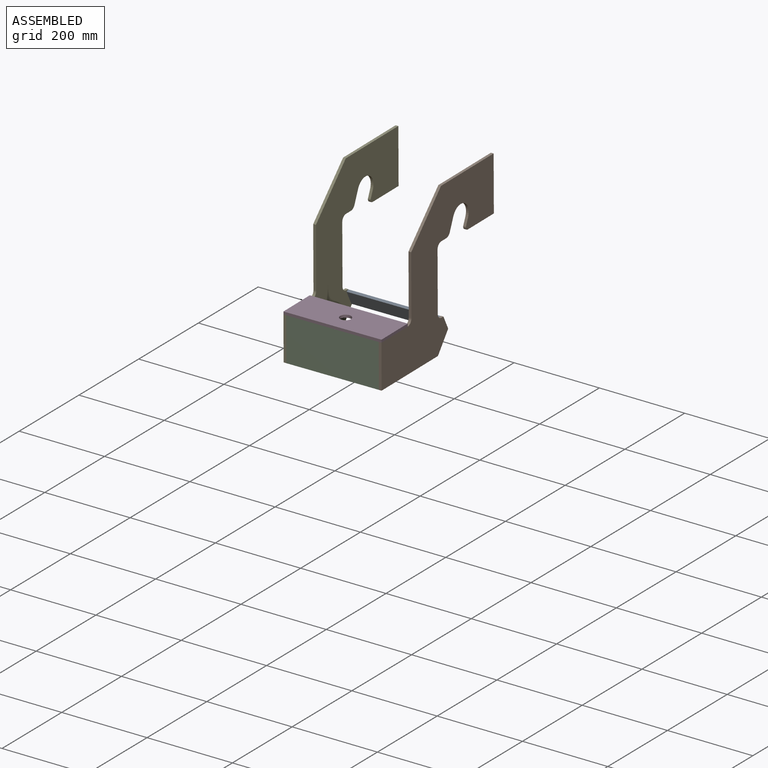
[diagram: assembled view]
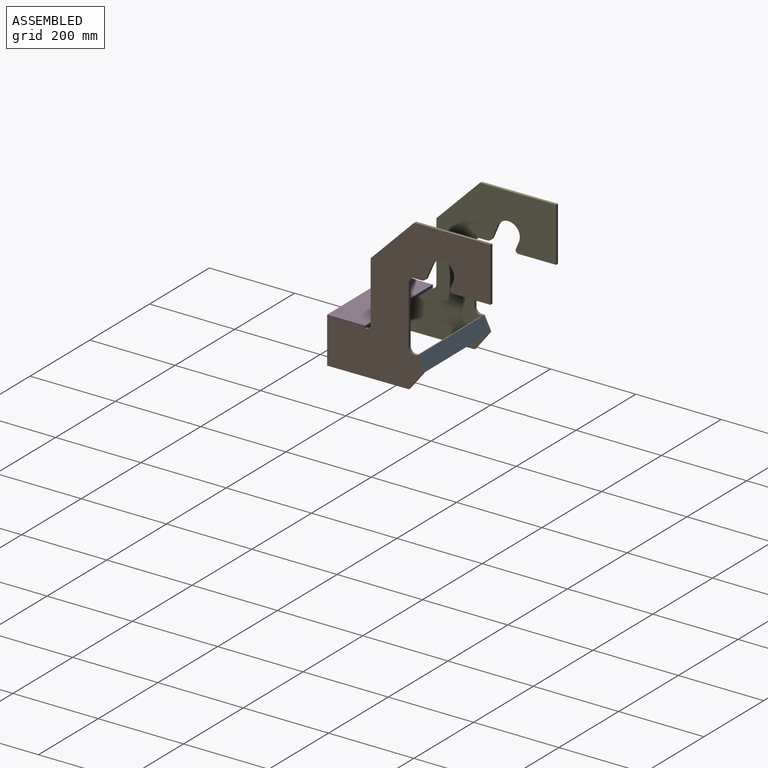
[diagram: assembled view, second angle]
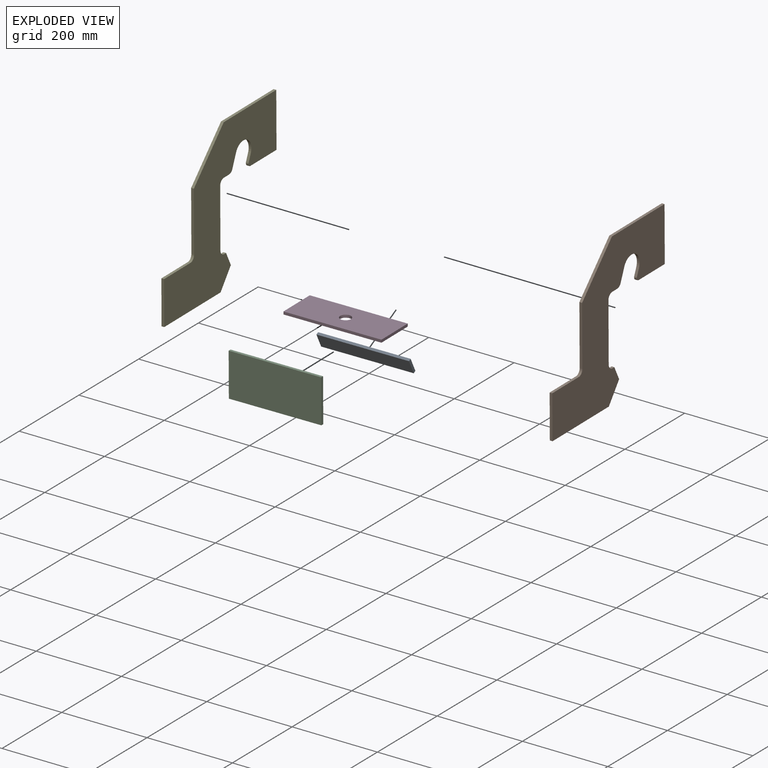
[diagram: exploded view]
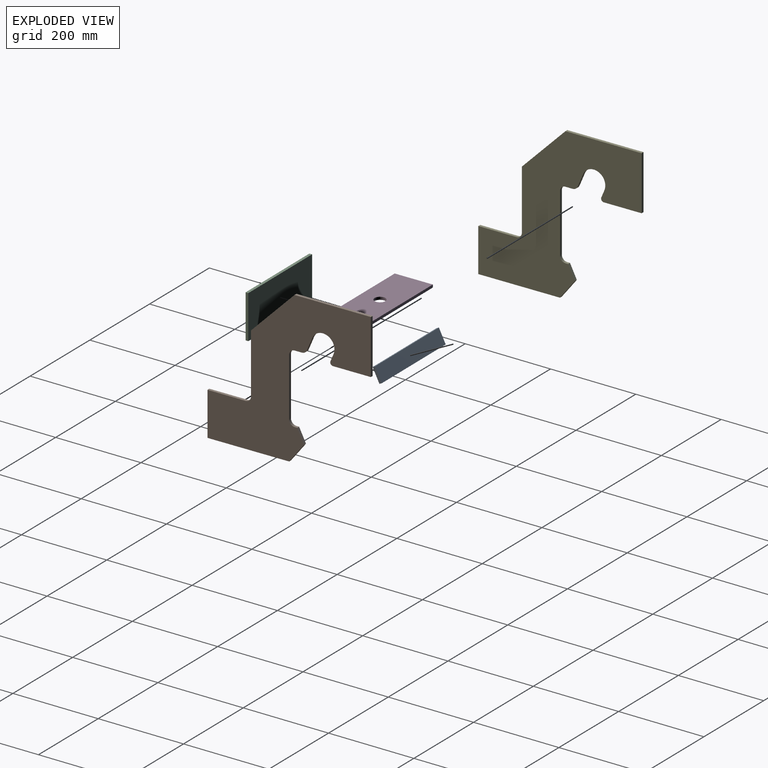
[diagram: exploded view, second angle]
ASSEMBLY  parts=5 mates=11
PART A: 6 faces, bbox 215.9x35.3x6.4 mm
  f0: plane 35.32x6.35mm, normal (1,0,0), area 224.3mm2, adj f1,f3,f4,f5
  f1: plane 215.9x6.35mm, normal (0,1,0), area 1371mm2, adj f0,f2,f4,f5
  f2: plane 35.32x6.35mm, normal (-1,0,0), area 224.3mm2, adj f1,f3,f4,f5
  f3: plane 215.9x6.35mm, normal (0,-1,0), area 1371mm2, adj f0,f2,f4,f5
  f4: plane 215.9x35.32mm, normal (0,0,1), area 7625.9mm2, adj f0,f1,f2,f3
  f5: plane 215.9x35.32mm, normal (0,0,-1), area 7625.9mm2, adj f0,f1,f2,f3
PART B: 23 faces, bbox 381x6.4x355.6 mm
  f0: plane 101.6x6.35mm, normal (-1,0,0), area 645.2mm2, adj f1,f20,f21,f22
  f1: plane 190.5x6.35mm, normal (0,0,-1), area 1209.7mm2, adj f0,f2,f21,f22
  f2: plane 44.45x34.93mm, normal (0.79,0,-0.62), area 359mm2, adj f1,f3,f21,f22
  f3: plane 31.75x15.88mm, normal (0.89,0,0.45), area 225.4mm2, adj f2,f4,f21,f22
  f4: plane 6.35x6.35mm, normal (0,0,1), area 40.3mm2, adj f3,f5,f21,f22
  f5: cylinder r=12.7mm len=12.7mm, axis (0,1,0), area 126.7mm2, adj f4,f6,f21,f22
  f6: plane 136.53x6.35mm, normal (1,0,0), area 866.9mm2, adj f5,f7,f21,f22
  f7: cylinder r=12.7mm len=12.7mm, axis (0,1,0), area 126.7mm2, adj f6,f8,f21,f22
  f8: plane 16.99x6.35mm, normal (0,0,-1), area 107.9mm2, adj f7,f9,f21,f22
  f9: cylinder r=12.7mm len=11.69mm, axis (0,1,0), area 94.3mm2, adj f8,f10,f21,f22
  f10: plane 29.48x12.51mm, normal (0.92,0,-0.39), area 203.4mm2, adj f9,f11,f21,f22
  f11: cylinder r=26.99mm len=51.83mm, axis (0,1,0), area 538.4mm2, adj f10,f12,f21,f22
  f12: plane 16.82x7.14mm, normal (-0.92,0,0.39), area 116mm2, adj f11,f13,f21,f22
  f13: cylinder r=6.35mm len=8.83mm, axis (0,1,0), area 79.5mm2, adj f12,f14,f21,f22
  f14: plane 88.21x6.35mm, normal (0,0,-1), area 560.1mm2, adj f13,f15,f21,f22
  f15: plane 127x6.35mm, normal (1,0,0), area 806.4mm2, adj f14,f16,f21,f22
  f16: plane 177.8x6.35mm, normal (0,0,1), area 1129mm2, adj f15,f17,f21,f22
  f17: plane 101.6x101.6mm, normal (-0.71,0,0.71), area 912.4mm2, adj f16,f18,f21,f22
  f18: plane 139.7x6.35mm, normal (-1,0,0), area 887.1mm2, adj f17,f19,f21,f22
  f19: cylinder r=12.7mm len=12.7mm, axis (0,1,0), area 126.7mm2, adj f18,f20,f21,f22
  f20: plane 88.9x6.35mm, normal (0,0,1), area 564.5mm2, adj f0,f19,f21,f22
  f21: plane 381x355.6mm, normal (0,-1,0), area 59060.9mm2, adj f0,f1,f2,f3,f4,f5,f6,f7
  f22: plane 381x355.6mm, normal (0,1,0), area 59060.9mm2, adj f0,f1,f2,f3,f4,f5,f6,f7
PART C: 6 faces, bbox 215.9x6.4x101.6 mm
  f0: plane 101.6x6.35mm, normal (1,0,0), area 645.2mm2, adj f1,f3,f4,f5
  f1: plane 215.9x6.35mm, normal (0,0,1), area 1371mm2, adj f0,f2,f4,f5
  f2: plane 101.6x6.35mm, normal (-1,0,0), area 645.2mm2, adj f1,f3,f4,f5
  f3: plane 215.9x6.35mm, normal (0,0,-1), area 1371mm2, adj f0,f2,f4,f5
  f4: plane 215.9x101.6mm, normal (0,-1,0), area 21935.4mm2, adj f0,f1,f2,f3
  f5: plane 215.9x101.6mm, normal (0,1,0), area 21935.4mm2, adj f0,f1,f2,f3
PART D: 7 faces, bbox 228.6x88.9x6.4 mm
  f0: plane 88.9x6.35mm, normal (1,0,0), area 564.5mm2, adj f1,f3,f5,f6
  f1: plane 228.6x6.35mm, normal (0,1,0), area 1451.6mm2, adj f0,f2,f5,f6
  f2: plane 88.9x6.35mm, normal (-1,0,0), area 564.5mm2, adj f1,f3,f5,f6
  f3: plane 228.6x6.35mm, normal (0,-1,0), area 1451.6mm2, adj f0,f2,f5,f6
  f4: cylinder r=12.7mm len=25.4mm, axis (0,0,-1), area 506.7mm2, adj f5,f6
  f5: plane 228.6x88.9mm, normal (0,0,1), area 19815.8mm2, adj f0,f1,f2,f3,f4
  f6: plane 228.6x88.9mm, normal (0,0,-1), area 19815.8mm2, adj f0,f1,f2,f3,f4
PART E: same geometry as B
PLACE A rot(axis=(0,0.85,-0.52),179.6deg) t=(-111.88,-3.61,-446.65)mm
PLACE B rot(axis=(0,0,1),90.4deg) t=(-3.28,-87.03,-461.78)mm
PLACE C rot(axis=(0.25,-0.36,0.9),0.5deg) t=(-110.34,-215.02,-455.99)mm
PLACE D rot(axis=(-1,0,0),179.9deg) t=(-110.78,-177.04,-398.76)mm
PLACE E rot(axis=(0,0,1),90.4deg) t=(-225.53,-88.61,-462.41)mm
MATE planar D.f0 <-> B.f21  axis (1,0.01,0) through (3.53,-176.22,-401.61)mm
MATE planar C.f4 <-> B.f0  axis (0.01,-1,0) through (-110.3,-221.37,-456)mm
MATE planar C.f3 <-> E.f1  axis (0,0,-1) through (-110.18,-218.1,-506.79)mm
MATE planar A.f5 <-> E.f3  axis (-0.01,0.89,0.45) through (-111.88,-3.61,-446.65)mm
MATE planar C.f0 <-> B.f22  axis (1,0.01,0) through (-2.37,-217.43,-455.69)mm
MATE planar D.f4 <-> B.f20  axis (0,0,-1) through (-110.76,-177.02,-405.11)mm
MATE planar B.f1 <-> C.f3  axis (0,0,-1) through (0.29,-125.23,-506.3)mm
MATE planar A.f5 <-> B.f3  axis (-0.01,0.89,0.45) through (-111.88,-3.61,-446.65)mm
MATE planar A.f0 <-> E.f21  axis (-1,-0.01,0) through (-219.8,-7.22,-448.38)mm
MATE planar D.f1 <-> C.f4  axis (0.01,-1,0) through (-110.45,-221.48,-402.02)mm
MATE planar B.f22 <-> A.f2  axis (-1,-0.01,0) through (-4.02,-38.66,-324.77)mm
